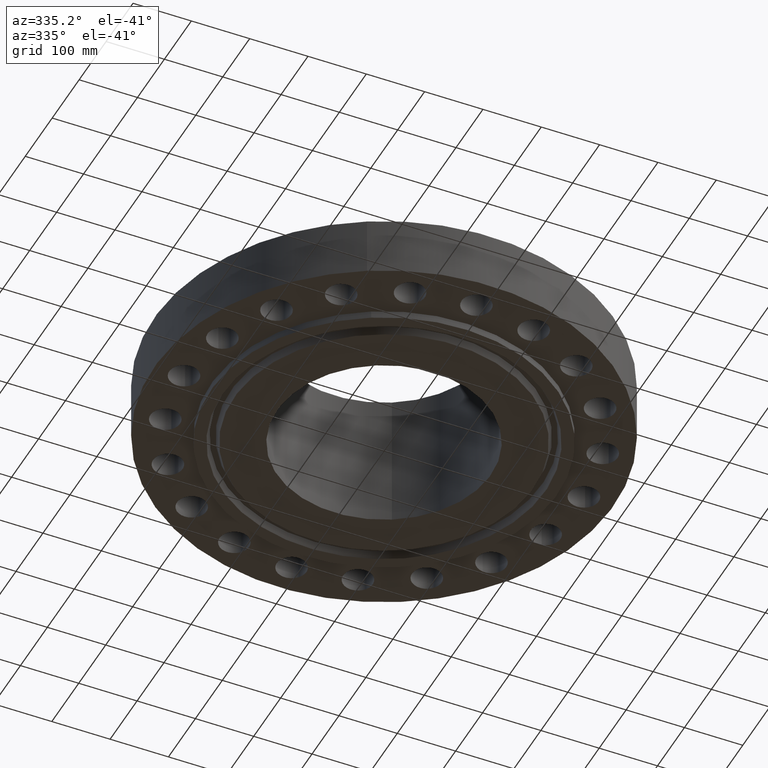
[diagram: clean part render]
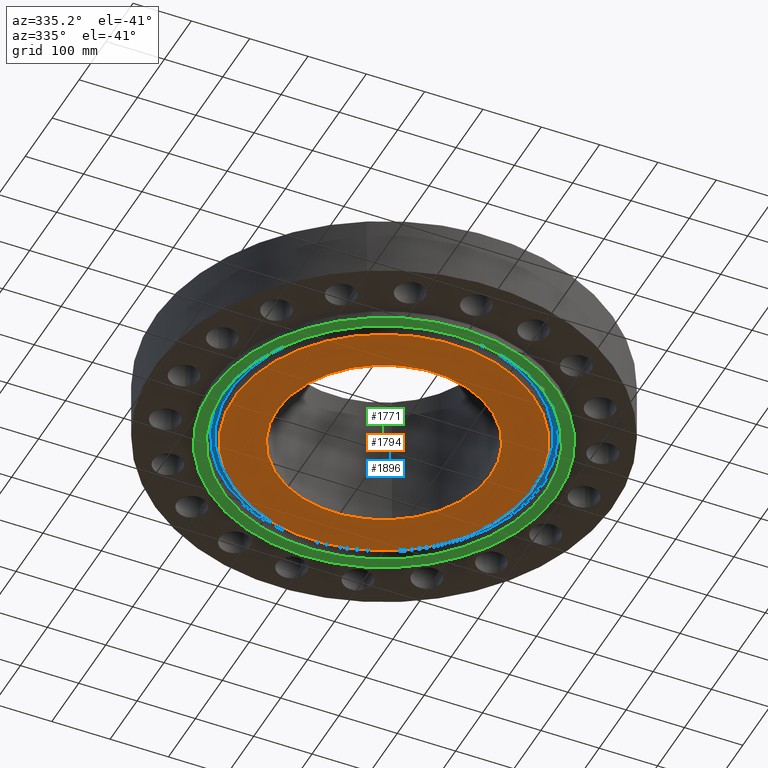
[diagram: same view with three faces highlighted in distinct colors, each labeled with its STEP entity id]
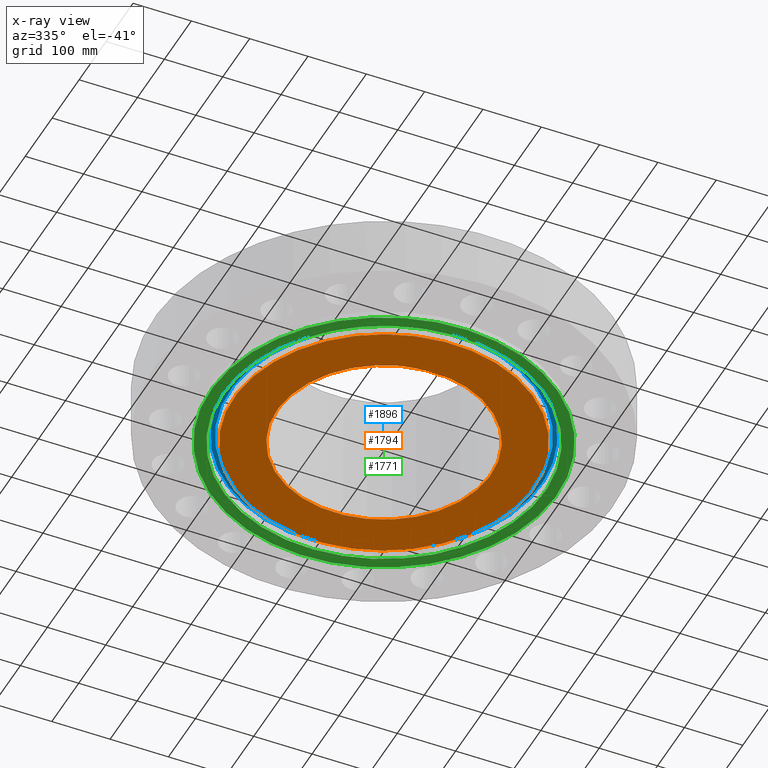
[diagram: x-ray of the same camera — body ghosted, the three highlighted faces saturated]
A machine part, auxiliary view with three faces highlighted in distinct colors.
The next image is the same camera in x-ray (body ghosted, the three faces saturated) — at least one of them is partly hidden behind the body in this view.
Their STEP definitions:

[orange] entity #1794 — the highlighted planar face has unit normal (0, 0, -1).
#427=AXIS2_PLACEMENT_3D('Circle Axis2P3D',#425,#426,$) ;
#446=AXIS2_PLACEMENT_3D('Circle Axis2P3D',#444,#445,$) ;
#1747=AXIS2_PLACEMENT_3D('Plane Axis2P3D',#1744,#1745,#1746) ;
#1774=AXIS2_PLACEMENT_3D('Circle Axis2P3D',#1772,#1773,$) ;
#1783=AXIS2_PLACEMENT_3D('Circle Axis2P3D',#1781,#1782,$) ;
#422=CARTESIAN_POINT('Vertex',(-3.4609729632,-6.33526851431,-0.500000000002)) ;
#425=CARTESIAN_POINT('Axis2P3D Location',(0.,0.,-0.500000000002)) ;
#429=CARTESIAN_POINT('Vertex',(3.4609729632,6.33526851431,-0.500000000002)) ;
#444=CARTESIAN_POINT('Axis2P3D Location',(0.,0.,-0.500000000002)) ;
#1744=CARTESIAN_POINT('Axis2P3D Location',(0.,7.21900000003,-0.500000000002)) ;
#1772=CARTESIAN_POINT('Axis2P3D Location',(-1.1189649382E-015,0.,-0.500000000002)) ;
#1776=CARTESIAN_POINT('Vertex',(-4.84668056871,8.87178927208,-0.500000000002)) ;
#1778=CARTESIAN_POINT('Vertex',(4.84668056871,-8.87178927208,-0.500000000002)) ;
#1781=CARTESIAN_POINT('Axis2P3D Location',(-2.23792987641E-015,0.,-0.500000000002)) ;
#426=DIRECTION('Axis2P3D Direction',(0.,0.,-0.0393700787402)) ;
#445=DIRECTION('Axis2P3D Direction',(0.,0.,-0.0393700787402)) ;
#1745=DIRECTION('Axis2P3D Direction',(0.,0.,-0.0393700787402)) ;
#1746=DIRECTION('Axis2P3D XDirection',(0.0393700787402,0.,0.)) ;
#1773=DIRECTION('Axis2P3D Direction',(0.,0.,-0.0393700787402)) ;
#1782=DIRECTION('Axis2P3D Direction',(0.,0.,-0.0393700787402)) ;
#1787=ORIENTED_EDGE('',*,*,#1780,.T.) ;
#1788=ORIENTED_EDGE('',*,*,#1785,.T.) ;
#1791=ORIENTED_EDGE('',*,*,#448,.F.) ;
#1792=ORIENTED_EDGE('',*,*,#431,.F.) ;
#1793=FACE_BOUND('',#1790,.T.) ;
#1794=ADVANCED_FACE('PartBody',(#1789,#1793),#1748,.T.) ;
#428=CIRCLE('generated circle',#427,7.21900000003) ;
#447=CIRCLE('generated circle',#446,7.21900000003) ;
#1775=CIRCLE('generated circle',#1774,10.10935) ;
#1784=CIRCLE('generated circle',#1783,10.10935) ;
#431=EDGE_CURVE('',#423,#430,#428,.T.) ;
#448=EDGE_CURVE('',#430,#423,#447,.T.) ;
#1780=EDGE_CURVE('',#1777,#1779,#1775,.T.) ;
#1785=EDGE_CURVE('',#1779,#1777,#1784,.T.) ;
#1786=EDGE_LOOP('',(#1787,#1788)) ;
#1790=EDGE_LOOP('',(#1791,#1792)) ;
#1789=FACE_OUTER_BOUND('',#1786,.T.) ;
#1748=PLANE('',#1747) ;
#423=VERTEX_POINT('',#422) ;
#430=VERTEX_POINT('',#429) ;
#1777=VERTEX_POINT('',#1776) ;
#1779=VERTEX_POINT('',#1778) ;

[blue] entity #1896 — the highlighted planar face has unit normal (0, 0, -1).
#570=AXIS2_PLACEMENT_3D('Plane Axis2P3D',#567,#568,#569) ;
#1818=AXIS2_PLACEMENT_3D('Circle Axis2P3D',#1816,#1817,$) ;
#1864=AXIS2_PLACEMENT_3D('Circle Axis2P3D',#1862,#1863,$) ;
#1880=AXIS2_PLACEMENT_3D('Circle Axis2P3D',#1878,#1879,$) ;
#1889=AXIS2_PLACEMENT_3D('Circle Axis2P3D',#1887,#1888,$) ;
#567=CARTESIAN_POINT('Axis2P3D Location',(0.,11.6875,0.)) ;
#1813=CARTESIAN_POINT('Vertex',(-5.09967090572,9.3348849777,-2.88483148131E-016)) ;
#1816=CARTESIAN_POINT('Axis2P3D Location',(0.,0.,-2.88483148131E-016)) ;
#1820=CARTESIAN_POINT('Vertex',(5.09967090572,-9.3348849777,-2.88483148131E-016)) ;
#1862=CARTESIAN_POINT('Axis2P3D Location',(0.,0.,-2.88483148131E-016)) ;
#1878=CARTESIAN_POINT('Axis2P3D Location',(0.,0.,0.)) ;
#1882=CARTESIAN_POINT('Vertex',(4.96826540501,-9.09434882207,5.15772901204E-016)) ;
#1884=CARTESIAN_POINT('Vertex',(-4.96826540501,9.09434882207,5.15772901204E-016)) ;
#1887=CARTESIAN_POINT('Axis2P3D Location',(0.,0.,0.)) ;
#568=DIRECTION('Axis2P3D Direction',(0.,0.,-0.0393700787402)) ;
#569=DIRECTION('Axis2P3D XDirection',(0.0393700787402,0.,0.)) ;
#1817=DIRECTION('Axis2P3D Direction',(0.,0.,0.0393700787402)) ;
#1863=DIRECTION('Axis2P3D Direction',(0.,0.,0.0393700787402)) ;
#1879=DIRECTION('Axis2P3D Direction',(0.,0.,-0.0393700787402)) ;
#1888=DIRECTION('Axis2P3D Direction',(0.,0.,-0.0393700787402)) ;
#1875=ORIENTED_EDGE('',*,*,#1822,.F.) ;
#1876=ORIENTED_EDGE('',*,*,#1866,.F.) ;
#1893=ORIENTED_EDGE('',*,*,#1886,.T.) ;
#1894=ORIENTED_EDGE('',*,*,#1891,.T.) ;
#1895=FACE_BOUND('',#1892,.T.) ;
#1896=ADVANCED_FACE('PartBody',(#1877,#1895),#571,.T.) ;
#1819=CIRCLE('generated circle',#1818,10.6370447444) ;
#1865=CIRCLE('generated circle',#1864,10.6370447444) ;
#1881=CIRCLE('generated circle',#1880,10.3629552557) ;
#1890=CIRCLE('generated circle',#1889,10.3629552557) ;
#1822=EDGE_CURVE('',#1814,#1821,#1819,.T.) ;
#1866=EDGE_CURVE('',#1821,#1814,#1865,.T.) ;
#1886=EDGE_CURVE('',#1883,#1885,#1881,.F.) ;
#1891=EDGE_CURVE('',#1885,#1883,#1890,.F.) ;
#1874=EDGE_LOOP('',(#1875,#1876)) ;
#1892=EDGE_LOOP('',(#1893,#1894)) ;
#1877=FACE_OUTER_BOUND('',#1874,.T.) ;
#571=PLANE('',#570) ;
#1814=VERTEX_POINT('',#1813) ;
#1821=VERTEX_POINT('',#1820) ;
#1883=VERTEX_POINT('',#1882) ;
#1885=VERTEX_POINT('',#1884) ;

[green] entity #1771 — the highlighted planar face has unit normal (0, 0, -1).
#517=AXIS2_PLACEMENT_3D('Circle Axis2P3D',#515,#516,$) ;
#552=AXIS2_PLACEMENT_3D('Circle Axis2P3D',#550,#551,$) ;
#1747=AXIS2_PLACEMENT_3D('Plane Axis2P3D',#1744,#1745,#1746) ;
#1755=AXIS2_PLACEMENT_3D('Circle Axis2P3D',#1753,#1754,$) ;
#1764=AXIS2_PLACEMENT_3D('Circle Axis2P3D',#1762,#1763,$) ;
#515=CARTESIAN_POINT('Axis2P3D Location',(0.,0.,-0.500000000002)) ;
#519=CARTESIAN_POINT('Vertex',(-5.60328598246,-10.2567461921,-0.500000000002)) ;
#521=CARTESIAN_POINT('Vertex',(5.60328598246,10.2567461921,-0.500000000002)) ;
#550=CARTESIAN_POINT('Axis2P3D Location',(0.,0.,-0.500000000002)) ;
#1744=CARTESIAN_POINT('Axis2P3D Location',(0.,7.21900000003,-0.500000000002)) ;
#1753=CARTESIAN_POINT('Axis2P3D Location',(-2.79741234551E-016,-1.1189649382E-015,-0.500000000002)) ;
#1757=CARTESIAN_POINT('Vertex',(5.22125574202,-9.55744452769,-0.500000000002)) ;
#1759=CARTESIAN_POINT('Vertex',(-5.22125574202,9.55744452769,-0.500000000002)) ;
#1762=CARTESIAN_POINT('Axis2P3D Location',(-8.39223703654E-016,-1.1189649382E-015,-0.500000000002)) ;
#516=DIRECTION('Axis2P3D Direction',(0.,0.,-0.0393700787402)) ;
#551=DIRECTION('Axis2P3D Direction',(0.,0.,-0.0393700787402)) ;
#1745=DIRECTION('Axis2P3D Direction',(0.,0.,-0.0393700787402)) ;
#1746=DIRECTION('Axis2P3D XDirection',(0.0393700787402,0.,0.)) ;
#1754=DIRECTION('Axis2P3D Direction',(0.,0.,-0.0393700787402)) ;
#1763=DIRECTION('Axis2P3D Direction',(0.,0.,-0.0393700787402)) ;
#1750=ORIENTED_EDGE('',*,*,#523,.T.) ;
#1751=ORIENTED_EDGE('',*,*,#554,.T.) ;
#1768=ORIENTED_EDGE('',*,*,#1761,.F.) ;
#1769=ORIENTED_EDGE('',*,*,#1766,.F.) ;
#1770=FACE_BOUND('',#1767,.T.) ;
#1771=ADVANCED_FACE('PartBody',(#1752,#1770),#1748,.T.) ;
#518=CIRCLE('generated circle',#517,11.6875) ;
#553=CIRCLE('generated circle',#552,11.6875) ;
#1756=CIRCLE('generated circle',#1755,10.89065) ;
#1765=CIRCLE('generated circle',#1764,10.89065) ;
#523=EDGE_CURVE('',#520,#522,#518,.T.) ;
#554=EDGE_CURVE('',#522,#520,#553,.T.) ;
#1761=EDGE_CURVE('',#1758,#1760,#1756,.T.) ;
#1766=EDGE_CURVE('',#1760,#1758,#1765,.T.) ;
#1749=EDGE_LOOP('',(#1750,#1751)) ;
#1767=EDGE_LOOP('',(#1768,#1769)) ;
#1752=FACE_OUTER_BOUND('',#1749,.T.) ;
#1748=PLANE('',#1747) ;
#520=VERTEX_POINT('',#519) ;
#522=VERTEX_POINT('',#521) ;
#1758=VERTEX_POINT('',#1757) ;
#1760=VERTEX_POINT('',#1759) ;